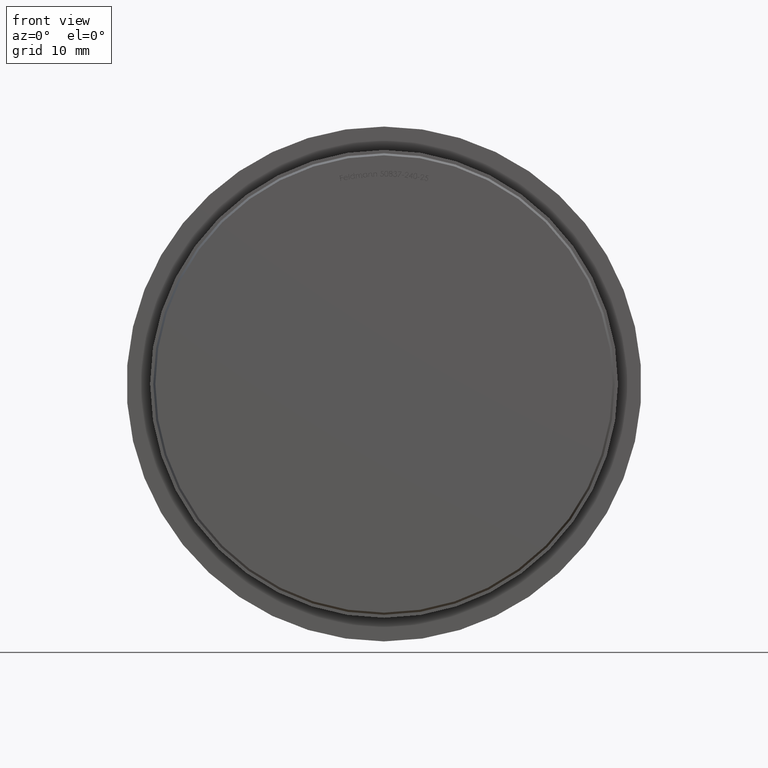
[diagram: clean part render]
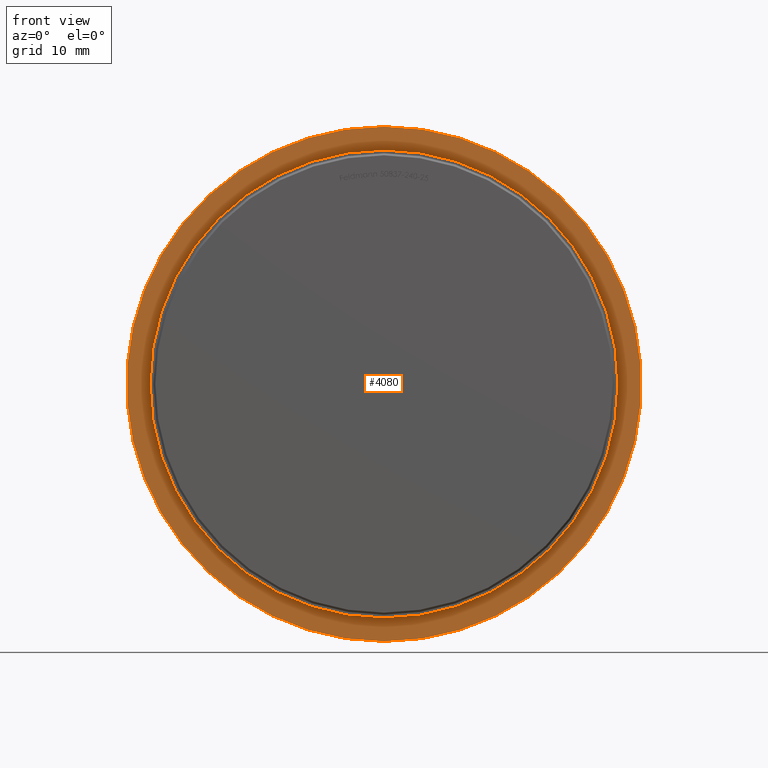
[diagram: same view with one face highlighted and labeled with its STEP entity id]
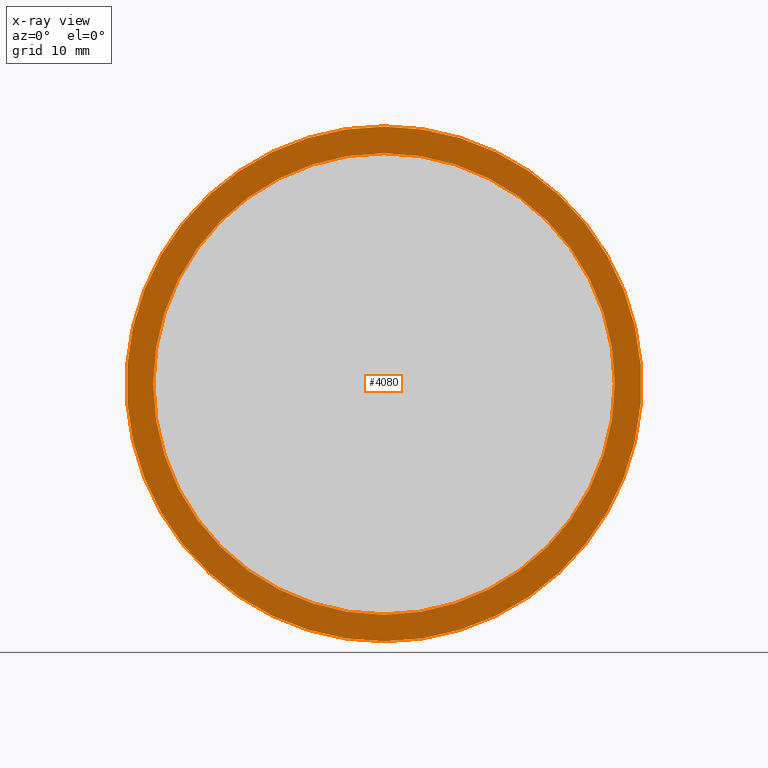
[diagram: x-ray of the same camera — body ghosted, the highlighted face saturated]
A machine part, front view. The second image highlights one B-rep face of the part: STEP entity #4080.
The next image is the same camera in x-ray: the body ghosted, the highlighted face saturated — about 0% of this face is hidden behind the body in this view.
In plain terms, the highlighted planar face has unit normal (0, -1, 0).
Its self-contained STEP definition (entity closure, byte-faithful):
#330 = AXIS2_PLACEMENT_3D ( 'NONE', #7404, #9798, #2415 ) ;
#827 = FACE_OUTER_BOUND ( 'NONE', #8373, .T. ) ;
#1092 = VERTEX_POINT ( 'NONE', #10649 ) ;
#1178 = FACE_BOUND ( 'NONE', #2165, .T. ) ;
#2165 = EDGE_LOOP ( 'NONE', ( #8214, #10445 ) ) ;
#2415 = DIRECTION ( 'NONE',  ( 0.0000000000000000000, 0.0000000000000000000, 1.000000000000000000 ) ) ;
#3046 = PLANE ( 'NONE',  #6625 ) ;
#3602 = VERTEX_POINT ( 'NONE', #8813 ) ;
#3934 = CARTESIAN_POINT ( 'NONE',  ( 0.0000000000000000000, 4.500000000000001800, 0.0000000000000000000 ) ) ;
#4080 = ADVANCED_FACE ( 'NONE', ( #1178, #827 ), #3046, .T. ) ;
#4208 = DIRECTION ( 'NONE',  ( 0.0000000000000000000, -0.0000000000000000000, -1.000000000000000000 ) ) ;
#4851 = CIRCLE ( 'NONE', #10615, 24.15000000000000200 ) ;
#5287 = DIRECTION ( 'NONE',  ( 0.0000000000000000000, 0.0000000000000000000, 1.000000000000000000 ) ) ;
#5317 = CIRCLE ( 'NONE', #6036, 21.65000000000000600 ) ;
#5735 = DIRECTION ( 'NONE',  ( 0.0000000000000000000, 1.000000000000000000, 0.0000000000000000000 ) ) ;
#6036 = AXIS2_PLACEMENT_3D ( 'NONE', #7532, #11347, #5287 ) ;
#6625 = AXIS2_PLACEMENT_3D ( 'NONE', #12490, #11353, #4208 ) ;
#6825 = CIRCLE ( 'NONE', #11655, 21.65000000000000600 ) ;
#6947 = DIRECTION ( 'NONE',  ( 0.0000000000000000000, 0.0000000000000000000, 1.000000000000000000 ) ) ;
#7039 = CARTESIAN_POINT ( 'NONE',  ( 0.0000000000000000000, 4.500000000000000900, 0.0000000000000000000 ) ) ;
#7404 = CARTESIAN_POINT ( 'NONE',  ( 0.0000000000000000000, 4.500000000000001800, 0.0000000000000000000 ) ) ;
#7413 = VERTEX_POINT ( 'NONE', #8431 ) ;
#7532 = CARTESIAN_POINT ( 'NONE',  ( 0.0000000000000000000, 4.500000000000000900, 0.0000000000000000000 ) ) ;
#7649 = EDGE_CURVE ( 'NONE', #15248, #3602, #10464, .T. ) ;
#7888 = ORIENTED_EDGE ( 'NONE', *, *, #8337, .F. ) ;
#8214 = ORIENTED_EDGE ( 'NONE', *, *, #12142, .T. ) ;
#8337 = EDGE_CURVE ( 'NONE', #3602, #15248, #4851, .T. ) ;
#8373 = EDGE_LOOP ( 'NONE', ( #7888, #9022 ) ) ;
#8431 = CARTESIAN_POINT ( 'NONE',  ( 2.651360320154020500E-015, 4.500000000000000900, 21.65000000000000600 ) ) ;
#8813 = CARTESIAN_POINT ( 'NONE',  ( 0.0000000000000000000, 4.500000000000001800, 24.15000000000000200 ) ) ;
#9022 = ORIENTED_EDGE ( 'NONE', *, *, #7649, .F. ) ;
#9798 = DIRECTION ( 'NONE',  ( -0.0000000000000000000, 1.000000000000000000, -0.0000000000000000000 ) ) ;
#10037 = DIRECTION ( 'NONE',  ( -0.0000000000000000000, 1.000000000000000000, -0.0000000000000000000 ) ) ;
#10445 = ORIENTED_EDGE ( 'NONE', *, *, #10554, .T. ) ;
#10464 = CIRCLE ( 'NONE', #330, 24.15000000000000200 ) ;
#10554 = EDGE_CURVE ( 'NONE', #7413, #1092, #6825, .T. ) ;
#10615 = AXIS2_PLACEMENT_3D ( 'NONE', #3934, #10037, #13490 ) ;
#10649 = CARTESIAN_POINT ( 'NONE',  ( 0.0000000000000000000, 4.500000000000000900, -21.65000000000000600 ) ) ;
#10937 = CARTESIAN_POINT ( 'NONE',  ( 2.957522019940858300E-015, 4.500000000000001800, -24.15000000000000200 ) ) ;
#11347 = DIRECTION ( 'NONE',  ( 0.0000000000000000000, 1.000000000000000000, 0.0000000000000000000 ) ) ;
#11353 = DIRECTION ( 'NONE',  ( 0.0000000000000000000, -1.000000000000000000, 0.0000000000000000000 ) ) ;
#11655 = AXIS2_PLACEMENT_3D ( 'NONE', #7039, #5735, #6947 ) ;
#12142 = EDGE_CURVE ( 'NONE', #1092, #7413, #5317, .T. ) ;
#12490 = CARTESIAN_POINT ( 'NONE',  ( -1.616201996251683700E-016, 4.500000000000000900, 0.0000000000000000000 ) ) ;
#13490 = DIRECTION ( 'NONE',  ( 0.0000000000000000000, 0.0000000000000000000, 1.000000000000000000 ) ) ;
#15248 = VERTEX_POINT ( 'NONE', #10937 ) ;